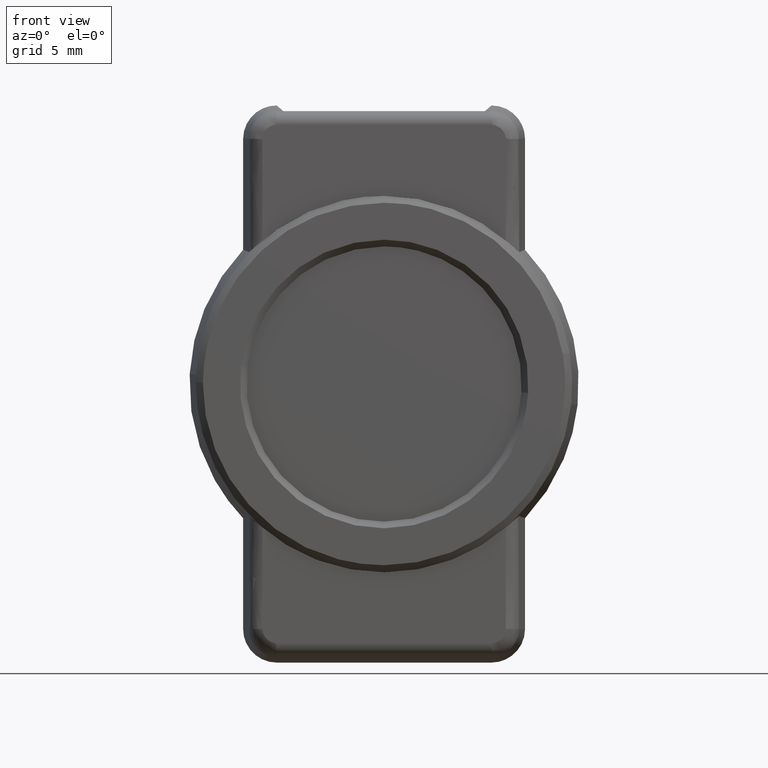
[diagram: clean part render]
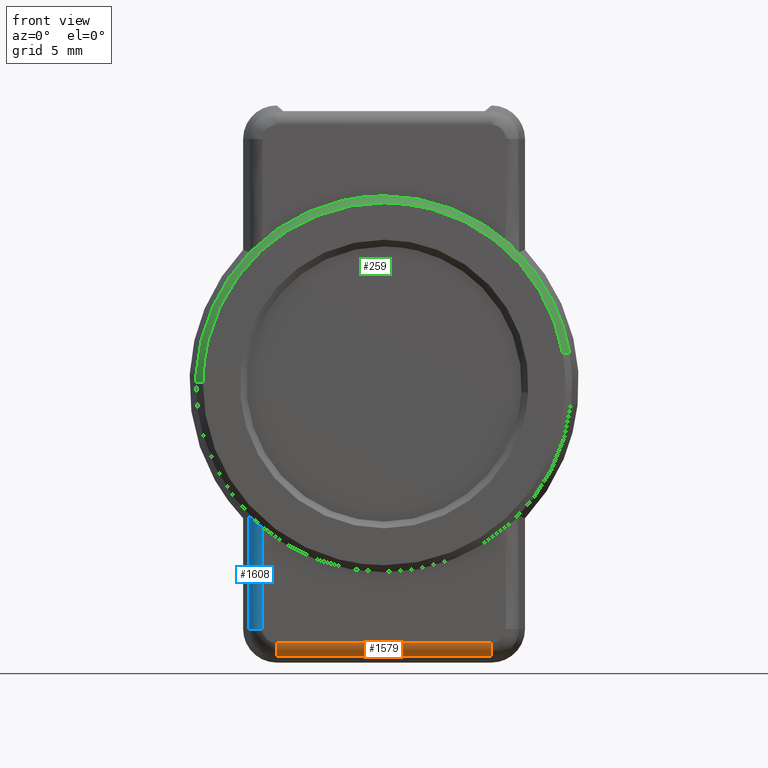
[diagram: same view with three faces highlighted in distinct colors, each labeled with its STEP entity id]
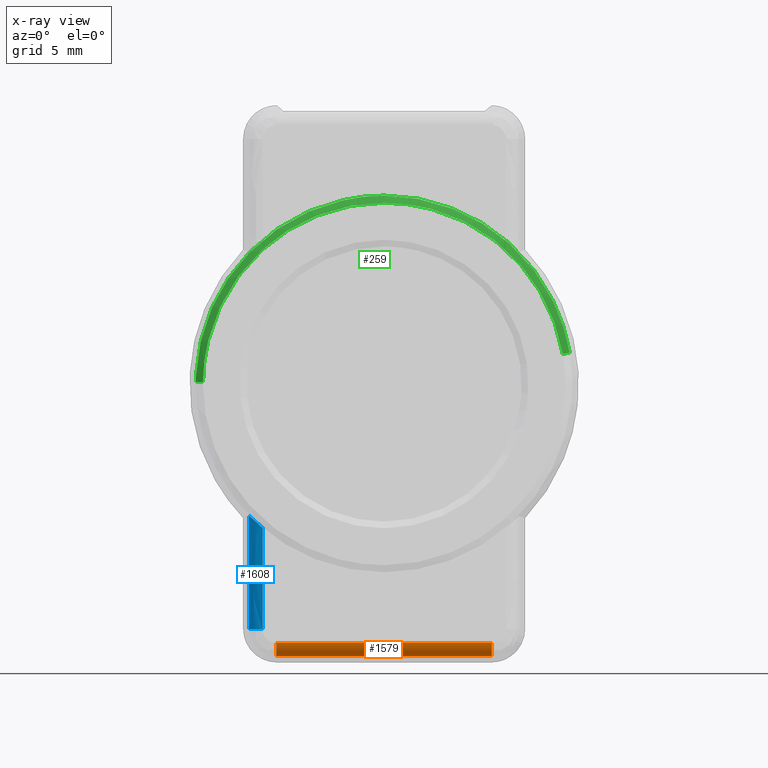
[diagram: x-ray of the same camera — body ghosted, the three highlighted faces saturated]
A machine part, front view with three faces highlighted in distinct colors.
The next image is the same camera in x-ray (body ghosted, the three faces saturated) — at least one of them is partly hidden behind the body in this view.
Their STEP definitions:

[orange] entity #1579 — the highlighted face is a freeform B-spline surface patch.
#1448=CARTESIAN_POINT('',(10.543597630091121,-8.019435775776319,-20.289886641699749));
#1449=VERTEX_POINT('',#1448);
#1489=CARTESIAN_POINT('',(11.499999999999821,-8.019435775776319,-19.290837470412150));
#1490=VERTEX_POINT('',#1489);
#1491=CARTESIAN_POINT('',(10.543597630091121,-8.019435775776319,-20.289886641699741));
#1492=CARTESIAN_POINT('',(11.499999999999821,-8.019435775776321,-20.248150080637394));
#1493=CARTESIAN_POINT('',(11.499999999999821,-8.019435775776319,-19.290837470412150));
#1501=(BOUNDED_CURVE()B_SPLINE_CURVE(2,(#1491,#1492,#1493),.UNSPECIFIED.,.F.,.U.)CURVE()GEOMETRIC_REPRESENTATION_ITEM()QUASI_UNIFORM_CURVE()RATIONAL_B_SPLINE_CURVE((1.0,0.722356432134199,1.0))REPRESENTATION_ITEM(''));
#1502=EDGE_CURVE('',#1449,#1490,#1501,.T.);
#1535=CARTESIAN_POINT('',(10.508726535498010,-8.420382772189361,-20.290799393476320));
#1536=CARTESIAN_POINT('',(10.508726535498010,8.429414752068691,-20.290799393476320));
#1537=CARTESIAN_POINT('',(11.570566080880539,-8.420382772189361,-20.281532860148769));
#1538=CARTESIAN_POINT('',(11.570566080880536,8.429414752068691,-20.281532860148769));
#1539=CARTESIAN_POINT('',(11.497638919680153,-8.420382772189361,-19.222160065549371));
#1540=CARTESIAN_POINT('',(11.497638919680144,8.429414752068693,-19.222160065549371));
#1548=(BOUNDED_SURFACE()B_SPLINE_SURFACE(1,2,((#1535,#1537,#1539),(#1536,#1538,#1540)),.UNSPECIFIED.,.F.,.F.,.U.)B_SPLINE_SURFACE_WITH_KNOTS((2,2),(3,3),(0.0,16.849797524258051),(0.0,0.993308629538771),.UNSPECIFIED.)GEOMETRIC_REPRESENTATION_ITEM()RATIONAL_B_SPLINE_SURFACE(((1.0,0.684126226842598,0.995772743129635),(1.0,0.684126226842598,0.995772743129635)))REPRESENTATION_ITEM('')SURFACE());
#1549=CARTESIAN_POINT('',(10.543597630091121,8.018444080745320,-20.289886641699649));
#1550=VERTEX_POINT('',#1549);
#1551=CARTESIAN_POINT('',(11.499999999999821,8.018444080745320,-19.290837470412100));
#1552=VERTEX_POINT('',#1551);
#1553=CARTESIAN_POINT('',(10.543597630091121,8.018444080745320,-20.289886641699692));
#1554=CARTESIAN_POINT('',(11.499999999999817,8.018444080745320,-20.248150080637355));
#1555=CARTESIAN_POINT('',(11.499999999999821,8.018444080745320,-19.290837470412100));
#1563=(BOUNDED_CURVE()B_SPLINE_CURVE(2,(#1553,#1554,#1555),.UNSPECIFIED.,.F.,.U.)CURVE()GEOMETRIC_REPRESENTATION_ITEM()QUASI_UNIFORM_CURVE()RATIONAL_B_SPLINE_CURVE((1.0,0.722356432134200,1.0))REPRESENTATION_ITEM(''));
#1564=EDGE_CURVE('',#1550,#1552,#1563,.T.);
#1565=ORIENTED_EDGE('',*,*,#1564,.T.);
#1566=CARTESIAN_POINT('',(11.499999999999821,-8.019435775776319,-19.290837470412150));
#1567=CARTESIAN_POINT('',(11.499999999999821,8.018444080745320,-19.290837470412100));
#1568=QUASI_UNIFORM_CURVE('',1,(#1566,#1567),.UNSPECIFIED.,.F.,.U.);
#1569=EDGE_CURVE('',#1490,#1552,#1568,.T.);
#1570=ORIENTED_EDGE('',*,*,#1569,.F.);
#1571=ORIENTED_EDGE('',*,*,#1502,.F.);
#1572=CARTESIAN_POINT('',(10.543597630091121,8.018444080745320,-20.289886641699649));
#1573=CARTESIAN_POINT('',(10.543597630091121,-8.019435775776319,-20.289886641699749));
#1574=QUASI_UNIFORM_CURVE('',1,(#1572,#1573),.UNSPECIFIED.,.F.,.U.);
#1575=EDGE_CURVE('',#1550,#1449,#1574,.T.);
#1576=ORIENTED_EDGE('',*,*,#1575,.F.);
#1577=EDGE_LOOP('',(#1565,#1570,#1571,#1576));
#1578=FACE_OUTER_BOUND('',#1577,.T.);
#1579=ADVANCED_FACE('',(#1578),#1548,.T.);

[blue] entity #1608 — the highlighted face is a freeform B-spline surface patch.
#489=CARTESIAN_POINT('',(10.541804031387160,-10.058924518231320,-9.823243119057571));
#490=VERTEX_POINT('',#489);
#504=CARTESIAN_POINT('',(11.499999999999821,-9.059798688838379,-10.699280595298299));
#505=VERTEX_POINT('',#504);
#506=CARTESIAN_POINT('',(10.541804031387160,-10.058924518231320,-9.823243119057571));
#507=CARTESIAN_POINT('',(10.617765728665020,-10.055746234692270,-9.821957708550301));
#508=CARTESIAN_POINT('',(10.691196451207770,-10.044115045481851,-9.829498843314761));
#509=CARTESIAN_POINT('',(10.797904900781541,-10.015105636011841,-9.852678789003896));
#510=CARTESIAN_POINT('',(10.832907226676110,-10.003439214268351,-9.862449238116287));
#511=CARTESIAN_POINT('',(10.899610480302909,-9.977184173157248,-9.885051833387930));
#512=CARTESIAN_POINT('',(10.931623786480291,-9.962521276154321,-9.897941111631175));
#513=CARTESIAN_POINT('',(10.993236163295711,-9.930387713535612,-9.926540866265610));
#514=CARTESIAN_POINT('',(11.023000334647699,-9.912798720218229,-9.942358921398736));
#515=CARTESIAN_POINT('',(11.079306310817540,-9.875606633040059,-9.975994120999831));
#516=CARTESIAN_POINT('',(11.105851163013140,-9.856036181505564,-9.993779762884380));
#517=CARTESIAN_POINT('',(11.181258867732900,-9.794703758183472,-10.049615213753460));
#518=CARTESIAN_POINT('',(11.225939427127400,-9.750346578791357,-10.090115473560109));
#519=CARTESIAN_POINT('',(11.305684033206360,-9.655380487429348,-10.176437576730949));
#520=CARTESIAN_POINT('',(11.339743050923991,-9.605950003152836,-10.221187193591160));
#521=CARTESIAN_POINT('',(11.397903773309960,-9.503891543518833,-10.312849470922030));
#522=CARTESIAN_POINT('',(11.422024394747890,-9.451206596035293,-10.359817071129950));
#523=CARTESIAN_POINT('',(11.451198517930550,-9.369723942840267,-10.431744188357140));
#524=CARTESIAN_POINT('',(11.459763882956530,-9.342072340803545,-10.456037325445021));
#525=CARTESIAN_POINT('',(11.474384588770789,-9.286513926057946,-10.504597605580299));
#526=CARTESIAN_POINT('',(11.480461036699420,-9.258569915561953,-10.528898328187861));
#527=CARTESIAN_POINT('',(11.495066938288931,-9.174241550393500,-10.601846582048610));
#528=CARTESIAN_POINT('',(11.499999999999821,-9.117362498379444,-10.650537455835840));
#529=CARTESIAN_POINT('',(11.499999999999821,-9.059798688838379,-10.699280595298299));
#530=B_SPLINE_CURVE_WITH_KNOTS('',3,(#506,#507,#508,#509,#510,#511,#512,#513,#514,#515,#516,#517,#518,#519,#520,#521,#522,#523,#524,#525,#526,#527,#528,#529),.UNSPECIFIED.,.F.,.U.,(4,2,2,2,2,2,2,2,2,2,2,4),(0.0,0.124999999999998,0.187499999999998,0.249999999999997,0.312499999999996,0.374999999999995,0.499999999999996,0.624999999999996,0.749999999999996,0.812499999999997,0.874999999999997,1.0),.UNSPECIFIED.);
#531=EDGE_CURVE('',#490,#505,#530,.T.);
#1431=CARTESIAN_POINT('',(11.499999999999821,-9.059798688838368,-18.250475106497301));
#1432=VERTEX_POINT('',#1431);
#1433=CARTESIAN_POINT('',(10.541804031381441,-10.058924518231359,-18.250475106497301));
#1434=VERTEX_POINT('',#1433);
#1435=CARTESIAN_POINT('',(11.499999999999821,-9.059798688838379,-18.250475106497301));
#1436=CARTESIAN_POINT('',(11.499999999999819,-10.018833017077609,-18.250475106497294));
#1437=CARTESIAN_POINT('',(10.541804031381441,-10.058924518231381,-18.250475106497301));
#1445=(BOUNDED_CURVE()B_SPLINE_CURVE(2,(#1435,#1436,#1437),.UNSPECIFIED.,.F.,.U.)CURVE()GEOMETRIC_REPRESENTATION_ITEM()QUASI_UNIFORM_CURVE()RATIONAL_B_SPLINE_CURVE((1.0,0.721735419451485,1.0))REPRESENTATION_ITEM(''));
#1446=EDGE_CURVE('',#1432,#1434,#1445,.T.);
#1580=CARTESIAN_POINT('',(11.499657324975381,-9.033621740530505,-18.461155906183290));
#1581=CARTESIAN_POINT('',(11.499657324975381,-9.033621740530505,-9.607295299379427));
#1582=CARTESIAN_POINT('',(11.526764348470708,-10.068797203945483,-18.461155906183290));
#1583=CARTESIAN_POINT('',(11.526764348470708,-10.068797203945483,-9.607295299379427));
#1584=CARTESIAN_POINT('',(10.491273464501450,-10.059760611902551,-18.461155906183290));
#1585=CARTESIAN_POINT('',(10.491273464501450,-10.059760611902551,-9.607295299379427));
#1593=(BOUNDED_SURFACE()B_SPLINE_SURFACE(1,2,((#1580,#1582,#1584),(#1581,#1583,#1585)),.UNSPECIFIED.,.F.,.F.,.U.)B_SPLINE_SURFACE_WITH_KNOTS((2,2),(3,3),(0.0,8.853860606803869),(0.0,1.0),.UNSPECIFIED.)GEOMETRIC_REPRESENTATION_ITEM()RATIONAL_B_SPLINE_SURFACE(((1.0,0.694658370458997,1.0),(1.0,0.694658370458997,1.0)))REPRESENTATION_ITEM('')SURFACE());
#1594=ORIENTED_EDGE('',*,*,#531,.F.);
#1595=CARTESIAN_POINT('',(10.541804031381441,-10.058924518231359,-18.250475106497301));
#1596=CARTESIAN_POINT('',(10.541804031387160,-10.058924518231320,-9.823243119057571));
#1597=QUASI_UNIFORM_CURVE('',1,(#1595,#1596),.UNSPECIFIED.,.F.,.U.);
#1598=EDGE_CURVE('',#1434,#490,#1597,.T.);
#1599=ORIENTED_EDGE('',*,*,#1598,.F.);
#1600=ORIENTED_EDGE('',*,*,#1446,.F.);
#1601=CARTESIAN_POINT('',(11.499999999999821,-9.059798688838379,-10.699280595298299));
#1602=CARTESIAN_POINT('',(11.499999999999821,-9.059798688838368,-18.250475106497301));
#1603=QUASI_UNIFORM_CURVE('',1,(#1601,#1602),.UNSPECIFIED.,.F.,.U.);
#1604=EDGE_CURVE('',#505,#1432,#1603,.T.);
#1605=ORIENTED_EDGE('',*,*,#1604,.F.);
#1606=EDGE_LOOP('',(#1594,#1599,#1600,#1605));
#1607=FACE_OUTER_BOUND('',#1606,.T.);
#1608=ADVANCED_FACE('',(#1607),#1593,.T.);

[green] entity #259 — the highlighted face is a freeform B-spline surface patch.
#66=CARTESIAN_POINT('',(11.500435347710839,13.825404875359419,2.326419532816193));
#67=VERTEX_POINT('',#66);
#85=CARTESIAN_POINT('',(11.999999999993619,13.311765581177861,2.239988755743789));
#86=VERTEX_POINT('',#85);
#87=CARTESIAN_POINT('',(11.999999999993619,13.311765581177861,2.239988755743789));
#88=CARTESIAN_POINT('',(11.500435347710839,13.825404875359419,2.326419532816193));
#89=QUASI_UNIFORM_CURVE('',1,(#87,#88),.UNSPECIFIED.,.F.,.U.);
#90=EDGE_CURVE('',#86,#67,#89,.T.);
#109=CARTESIAN_POINT('',(11.999999999993650,-13.498399015071620,0.117798743639487));
#110=VERTEX_POINT('',#109);
#126=CARTESIAN_POINT('',(11.500435347716570,-14.019239627859880,0.122344050760223));
#127=VERTEX_POINT('',#126);
#128=CARTESIAN_POINT('',(11.999999999993650,-13.498399015071620,0.117798743639487));
#129=CARTESIAN_POINT('',(11.500435347716570,-14.019239627859880,0.122344050760223));
#130=QUASI_UNIFORM_CURVE('',1,(#128,#129),.UNSPECIFIED.,.F.,.U.);
#131=EDGE_CURVE('',#110,#127,#130,.T.);
#166=CARTESIAN_POINT('',(12.012489116307091,-13.485377999745550,0.117685110912186));
#167=CARTESIAN_POINT('',(12.012489116307083,-13.367692888833361,13.603063110657732));
#168=CARTESIAN_POINT('',(12.012489116307091,0.117685110912186,13.485377999745550));
#169=CARTESIAN_POINT('',(12.012489116307085,11.422885663386351,13.386719009176090));
#170=CARTESIAN_POINT('',(12.012489116307094,13.298924598825687,2.237827986262738));
#171=CARTESIAN_POINT('',(11.487634003501899,-14.032586168562700,0.122460524255477));
#172=CARTESIAN_POINT('',(11.487634003501897,-13.910125644307227,14.155046692818182));
#173=CARTESIAN_POINT('',(11.487634003501899,0.122460524255477,14.032586168562700));
#174=CARTESIAN_POINT('',(11.487634003501897,11.886402247540486,13.929923804445410));
#175=CARTESIAN_POINT('',(11.487634003501899,13.838566882275076,2.328634321429147));
#183=(BOUNDED_SURFACE()B_SPLINE_SURFACE(2,1,((#166,#171),(#167,#172),(#168,#173),(#169,#174),(#170,#175)),.UNSPECIFIED.,.F.,.F.,.U.)B_SPLINE_SURFACE_WITH_KNOTS((3,2,3),(2,2),(0.0,23.250835345316521,43.711570449195051),(0.0,1.0),.UNSPECIFIED.)GEOMETRIC_REPRESENTATION_ITEM()RATIONAL_B_SPLINE_SURFACE(((1.0,1.0),(0.707106781186548,0.707106781186548),(1.0,1.0),(0.742253967444162,0.742253967444162),(0.938140952186599,0.938140952186599)))REPRESENTATION_ITEM('')SURFACE());
#184=CARTESIAN_POINT('',(11.500435347716660,0.0,14.019773457874020));
#185=VERTEX_POINT('',#184);
#186=CARTESIAN_POINT('',(11.500435347716660,0.0,14.019773457874020));
#187=CARTESIAN_POINT('',(11.500435347716657,11.857748432650640,14.019773457874026));
#188=CARTESIAN_POINT('',(11.500435347710836,13.825404875359418,2.326419532816193));
#196=(BOUNDED_CURVE()B_SPLINE_CURVE(2,(#186,#187,#188),.UNSPECIFIED.,.F.,.U.)B_SPLINE_CURVE_WITH_KNOTS((3,3),(0.0,0.221449239581236),.UNSPECIFIED.)CURVE()GEOMETRIC_REPRESENTATION_ITEM()RATIONAL_B_SPLINE_CURVE((1.0,0.740556077661042,0.940741429849568))REPRESENTATION_ITEM(''));
#197=EDGE_CURVE('',#185,#67,#196,.T.);
#198=ORIENTED_EDGE('',*,*,#197,.F.);
#199=CARTESIAN_POINT('',(11.500437049204489,-14.001854739480560,0.708596974417575));
#200=VERTEX_POINT('',#199);
#201=CARTESIAN_POINT('',(11.500437049204486,-14.001854739480553,0.708596974417575));
#202=CARTESIAN_POINT('',(11.500436198460573,-13.328211207374977,14.019773456078278));
#203=CARTESIAN_POINT('',(11.500435347716660,0.0,14.019773457874020));
#211=(BOUNDED_CURVE()B_SPLINE_CURVE(2,(#201,#202,#203),.UNSPECIFIED.,.F.,.U.)B_SPLINE_CURVE_WITH_KNOTS((3,3),(0.758847806340590,1.0),.UNSPECIFIED.)CURVE()GEOMETRIC_REPRESENTATION_ITEM()RATIONAL_B_SPLINE_CURVE((0.980002020432499,0.717472631100682,1.0))REPRESENTATION_ITEM(''));
#212=EDGE_CURVE('',#200,#185,#211,.T.);
#213=ORIENTED_EDGE('',*,*,#212,.F.);
#214=CARTESIAN_POINT('',(11.500435347716568,-14.019239627859875,0.122344050760223));
#215=CARTESIAN_POINT('',(11.500436198460525,-14.016679929403317,0.415652373795636));
#216=CARTESIAN_POINT('',(11.500437049204486,-14.001854739480553,0.708596974417575));
#224=(BOUNDED_CURVE()B_SPLINE_CURVE(2,(#214,#215,#216),.UNSPECIFIED.,.F.,.U.)B_SPLINE_CURVE_WITH_KNOTS((3,3),(0.751539894335010,0.758847806340590),.UNSPECIFIED.)CURVE()GEOMETRIC_REPRESENTATION_ITEM()RATIONAL_B_SPLINE_CURVE((0.996414028100352,0.987957750160694,0.980002020432499))REPRESENTATION_ITEM(''));
#225=EDGE_CURVE('',#127,#200,#224,.T.);
#226=ORIENTED_EDGE('',*,*,#225,.F.);
#227=ORIENTED_EDGE('',*,*,#131,.F.);
#228=CARTESIAN_POINT('',(12.0,0.0,13.498913012309940));
#229=VERTEX_POINT('',#228);
#230=CARTESIAN_POINT('',(12.0,0.0,13.498913012309940));
#231=CARTESIAN_POINT('',(12.000000000000002,-13.381623799854026,13.498913012309941));
#232=CARTESIAN_POINT('',(11.999999999993644,-13.498399015071621,0.117798743639487));
#240=(BOUNDED_CURVE()B_SPLINE_CURVE(2,(#230,#231,#232),.UNSPECIFIED.,.F.,.U.)B_SPLINE_CURVE_WITH_KNOTS((3,3),(0.500000000000000,0.748460105663759),.UNSPECIFIED.)CURVE()GEOMETRIC_REPRESENTATION_ITEM()RATIONAL_B_SPLINE_CURVE((1.0,0.708910879621644,0.996414028097504))REPRESENTATION_ITEM(''));
#241=EDGE_CURVE('',#229,#110,#240,.T.);
#242=ORIENTED_EDGE('',*,*,#241,.F.);
#243=CARTESIAN_POINT('',(11.999999999993614,13.311765581177863,2.239988755743788));
#244=CARTESIAN_POINT('',(11.999999999999998,11.417211204946776,13.498913012309941));
#245=CARTESIAN_POINT('',(12.0,0.0,13.498913012309940));
#253=(BOUNDED_CURVE()B_SPLINE_CURVE(2,(#243,#244,#245),.UNSPECIFIED.,.F.,.U.)B_SPLINE_CURVE_WITH_KNOTS((3,3),(0.278550760418919,0.500000000000000),.UNSPECIFIED.)CURVE()GEOMETRIC_REPRESENTATION_ITEM()RATIONAL_B_SPLINE_CURVE((0.940741429849288,0.740556077661223,1.0))REPRESENTATION_ITEM(''));
#254=EDGE_CURVE('',#86,#229,#253,.T.);
#255=ORIENTED_EDGE('',*,*,#254,.F.);
#256=ORIENTED_EDGE('',*,*,#90,.T.);
#257=EDGE_LOOP('',(#198,#213,#226,#227,#242,#255,#256));
#258=FACE_OUTER_BOUND('',#257,.T.);
#259=ADVANCED_FACE('',(#258),#183,.T.);